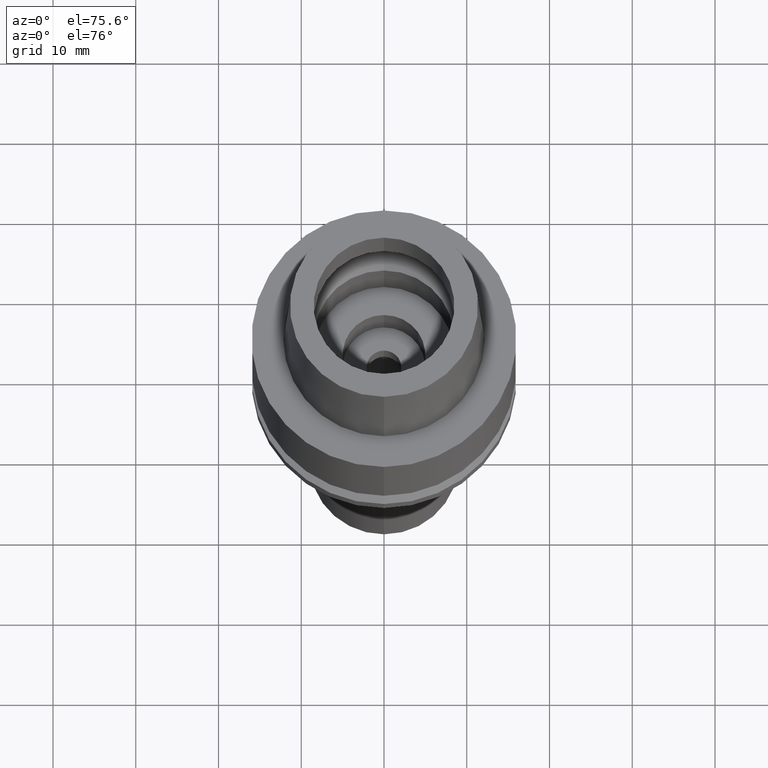
[diagram: clean part render]
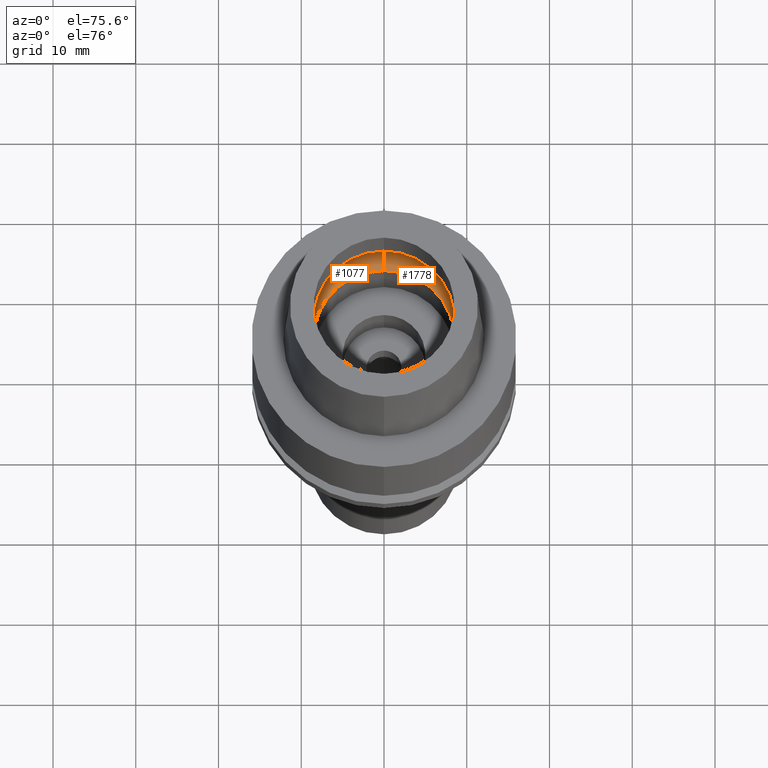
[diagram: same view with one multi-face feature highlighted, each face labeled with its STEP entity id]
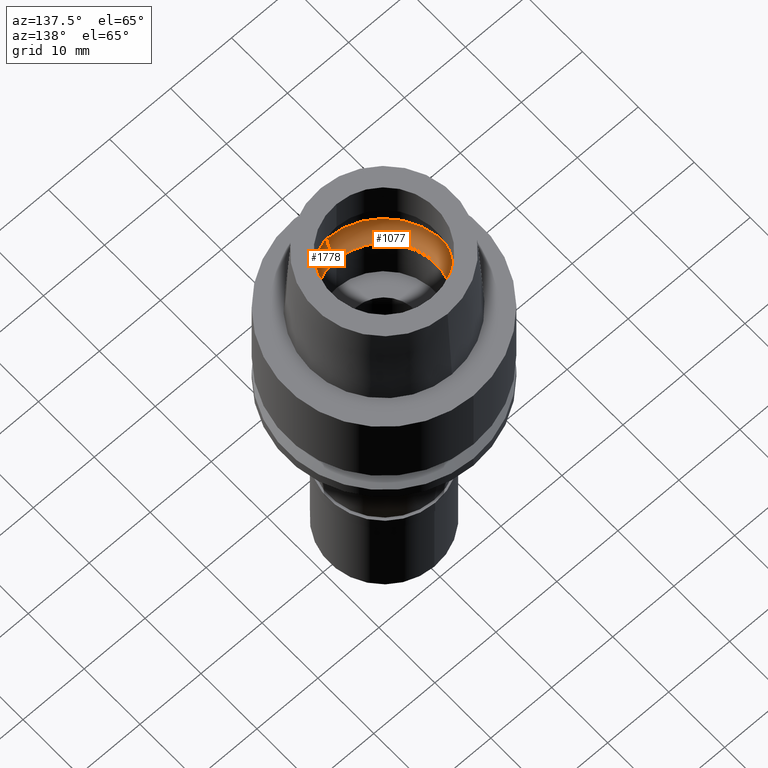
[diagram: same view with one multi-face feature highlighted, each face labeled with its STEP entity id]
A machine part, auxiliary view. The highlighted faces form ONE feature: a constant-radius fillet chain: 2 tangent blend faces with common blend radius 4 mm. The faces share edges in the B-rep.
A second angle (auxiliary view) of the same feature is appended — it is thin or edge-on in the first view.
Their STEP definitions:
[1] entity #1778 (Torus):
#56 = EDGE_CURVE ( 'NONE', #2251, #1456, #147, .T. ) ;
#59 = DIRECTION ( 'NONE',  ( 0.0000000000000000000, -1.000000000000000000, 0.0000000000000000000 ) ) ;
#135 = ORIENTED_EDGE ( 'NONE', *, *, #2108, .F. ) ;
#147 = CIRCLE ( 'NONE', #1941, 3.999999999999999112 ) ;
#206 = CARTESIAN_POINT ( 'NONE',  ( 0.0000000000000000000, -10.25000000000000000, 3.357000000000000206 ) ) ;
#210 = VERTEX_POINT ( 'NONE', #879 ) ;
#235 = DIRECTION ( 'NONE',  ( 0.0000000000000000000, 0.0000000000000000000, 1.000000000000000000 ) ) ;
#313 = CARTESIAN_POINT ( 'NONE',  ( 0.0000000000000000000, 0.0000000000000000000, 3.357000000000000206 ) ) ;
#322 = AXIS2_PLACEMENT_3D ( 'NONE', #1648, #1659, #2495 ) ;
#456 = VERTEX_POINT ( 'NONE', #1833 ) ;
#533 = DIRECTION ( 'NONE',  ( 0.0000000000000000000, 1.000000000000000000, 0.0000000000000000000 ) ) ;
#555 = CARTESIAN_POINT ( 'NONE',  ( 0.0000000000000000000, -8.500000000000000000, 0.04981086116926999874 ) ) ;
#646 = CARTESIAN_POINT ( 'NONE',  ( 0.0000000000000000000, 0.0000000000000000000, 0.04981086116926999874 ) ) ;
#729 = DIRECTION ( 'NONE',  ( 0.0000000000000000000, 0.5624999999999932276, -0.8267972847076892062 ) ) ;
#813 = ORIENTED_EDGE ( 'NONE', *, *, #56, .T. ) ;
#879 = CARTESIAN_POINT ( 'NONE',  ( 0.0000000000000000000, 8.500000000000000000, 0.04981086116926999874 ) ) ;
#1053 = CARTESIAN_POINT ( 'NONE',  ( 0.0000000000000000000, -6.250000000000000000, 3.357000000000000206 ) ) ;
#1093 = DIRECTION ( 'NONE',  ( 0.0000000000000000000, -0.5624999999999932276, -0.8267972847076892062 ) ) ;
#1098 = EDGE_LOOP ( 'NONE', ( #2222, #813, #135, #1759 ) ) ;
#1206 = AXIS2_PLACEMENT_3D ( 'NONE', #646, #235, #59 ) ;
#1221 = FACE_OUTER_BOUND ( 'NONE', #1098, .T. ) ;
#1242 = TOROIDAL_SURFACE ( 'NONE', #322, 6.250000000000000000, 4.000000000000000000 ) ;
#1315 = DIRECTION ( 'NONE',  ( 0.0000000000000000000, 0.0000000000000000000, -1.000000000000000000 ) ) ;
#1456 = VERTEX_POINT ( 'NONE', #206 ) ;
#1500 = CIRCLE ( 'NONE', #1681, 10.25000000000000000 ) ;
#1638 = CIRCLE ( 'NONE', #2336, 3.999999999999999112 ) ;
#1648 = CARTESIAN_POINT ( 'NONE',  ( 0.0000000000000000000, 0.0000000000000000000, 3.357000000000000206 ) ) ;
#1659 = DIRECTION ( 'NONE',  ( 0.0000000000000000000, 0.0000000000000000000, -1.000000000000000000 ) ) ;
#1677 = DIRECTION ( 'NONE',  ( -1.000000000000000000, 0.0000000000000000000, 0.0000000000000000000 ) ) ;
#1681 = AXIS2_PLACEMENT_3D ( 'NONE', #313, #1315, #533 ) ;
#1759 = ORIENTED_EDGE ( 'NONE', *, *, #2176, .F. ) ;
#1762 = DIRECTION ( 'NONE',  ( 1.000000000000000000, 0.0000000000000000000, 0.0000000000000000000 ) ) ;
#1778 = ADVANCED_FACE ( 'NONE', ( #1221 ), #1242, .F. ) ;
#1833 = CARTESIAN_POINT ( 'NONE',  ( 0.0000000000000000000, 10.25000000000000000, 3.357000000000000206 ) ) ;
#1885 = EDGE_CURVE ( 'NONE', #2251, #210, #2595, .T. ) ;
#1941 = AXIS2_PLACEMENT_3D ( 'NONE', #1053, #1677, #1093 ) ;
#2108 = EDGE_CURVE ( 'NONE', #456, #1456, #1500, .T. ) ;
#2176 = EDGE_CURVE ( 'NONE', #210, #456, #1638, .T. ) ;
#2222 = ORIENTED_EDGE ( 'NONE', *, *, #1885, .F. ) ;
#2251 = VERTEX_POINT ( 'NONE', #555 ) ;
#2336 = AXIS2_PLACEMENT_3D ( 'NONE', #2611, #1762, #729 ) ;
#2495 = DIRECTION ( 'NONE',  ( 0.0000000000000000000, -1.000000000000000000, 0.0000000000000000000 ) ) ;
#2595 = CIRCLE ( 'NONE', #1206, 8.500000000000000000 ) ;
#2611 = CARTESIAN_POINT ( 'NONE',  ( 0.0000000000000000000, 6.250000000000000000, 3.357000000000000206 ) ) ;
[2] entity #1077 (Torus):
#56 = EDGE_CURVE ( 'NONE', #2251, #1456, #147, .T. ) ;
#147 = CIRCLE ( 'NONE', #1941, 3.999999999999999112 ) ;
#177 = FACE_OUTER_BOUND ( 'NONE', #253, .T. ) ;
#206 = CARTESIAN_POINT ( 'NONE',  ( 0.0000000000000000000, -10.25000000000000000, 3.357000000000000206 ) ) ;
#210 = VERTEX_POINT ( 'NONE', #879 ) ;
#237 = CIRCLE ( 'NONE', #2157, 10.25000000000000000 ) ;
#253 = EDGE_LOOP ( 'NONE', ( #1443, #2052, #1844, #293 ) ) ;
#293 = ORIENTED_EDGE ( 'NONE', *, *, #2176, .T. ) ;
#320 = TOROIDAL_SURFACE ( 'NONE', #714, 6.250000000000000000, 4.000000000000000000 ) ;
#411 = CARTESIAN_POINT ( 'NONE',  ( 0.0000000000000000000, 0.0000000000000000000, 3.357000000000000206 ) ) ;
#456 = VERTEX_POINT ( 'NONE', #1833 ) ;
#555 = CARTESIAN_POINT ( 'NONE',  ( 0.0000000000000000000, -8.500000000000000000, 0.04981086116926999874 ) ) ;
#666 = EDGE_CURVE ( 'NONE', #210, #2251, #1943, .T. ) ;
#714 = AXIS2_PLACEMENT_3D ( 'NONE', #2043, #1863, #1014 ) ;
#729 = DIRECTION ( 'NONE',  ( 0.0000000000000000000, 0.5624999999999932276, -0.8267972847076892062 ) ) ;
#757 = AXIS2_PLACEMENT_3D ( 'NONE', #1572, #2216, #1141 ) ;
#879 = CARTESIAN_POINT ( 'NONE',  ( 0.0000000000000000000, 8.500000000000000000, 0.04981086116926999874 ) ) ;
#1014 = DIRECTION ( 'NONE',  ( 0.0000000000000000000, -1.000000000000000000, 0.0000000000000000000 ) ) ;
#1053 = CARTESIAN_POINT ( 'NONE',  ( 0.0000000000000000000, -6.250000000000000000, 3.357000000000000206 ) ) ;
#1077 = ADVANCED_FACE ( 'NONE', ( #177 ), #320, .F. ) ;
#1093 = DIRECTION ( 'NONE',  ( 0.0000000000000000000, -0.5624999999999932276, -0.8267972847076892062 ) ) ;
#1123 = EDGE_CURVE ( 'NONE', #1456, #456, #237, .T. ) ;
#1141 = DIRECTION ( 'NONE',  ( 0.0000000000000000000, 1.000000000000000000, 0.0000000000000000000 ) ) ;
#1443 = ORIENTED_EDGE ( 'NONE', *, *, #1123, .F. ) ;
#1456 = VERTEX_POINT ( 'NONE', #206 ) ;
#1572 = CARTESIAN_POINT ( 'NONE',  ( 0.0000000000000000000, 0.0000000000000000000, 0.04981086116926999874 ) ) ;
#1623 = DIRECTION ( 'NONE',  ( 0.0000000000000000000, -1.000000000000000000, 0.0000000000000000000 ) ) ;
#1638 = CIRCLE ( 'NONE', #2336, 3.999999999999999112 ) ;
#1677 = DIRECTION ( 'NONE',  ( -1.000000000000000000, 0.0000000000000000000, 0.0000000000000000000 ) ) ;
#1762 = DIRECTION ( 'NONE',  ( 1.000000000000000000, 0.0000000000000000000, 0.0000000000000000000 ) ) ;
#1833 = CARTESIAN_POINT ( 'NONE',  ( 0.0000000000000000000, 10.25000000000000000, 3.357000000000000206 ) ) ;
#1844 = ORIENTED_EDGE ( 'NONE', *, *, #666, .F. ) ;
#1863 = DIRECTION ( 'NONE',  ( 0.0000000000000000000, 0.0000000000000000000, -1.000000000000000000 ) ) ;
#1941 = AXIS2_PLACEMENT_3D ( 'NONE', #1053, #1677, #1093 ) ;
#1943 = CIRCLE ( 'NONE', #757, 8.500000000000000000 ) ;
#2043 = CARTESIAN_POINT ( 'NONE',  ( 0.0000000000000000000, 0.0000000000000000000, 3.357000000000000206 ) ) ;
#2052 = ORIENTED_EDGE ( 'NONE', *, *, #56, .F. ) ;
#2157 = AXIS2_PLACEMENT_3D ( 'NONE', #411, #2491, #1623 ) ;
#2176 = EDGE_CURVE ( 'NONE', #210, #456, #1638, .T. ) ;
#2216 = DIRECTION ( 'NONE',  ( 0.0000000000000000000, 0.0000000000000000000, 1.000000000000000000 ) ) ;
#2251 = VERTEX_POINT ( 'NONE', #555 ) ;
#2336 = AXIS2_PLACEMENT_3D ( 'NONE', #2611, #1762, #729 ) ;
#2491 = DIRECTION ( 'NONE',  ( 0.0000000000000000000, 0.0000000000000000000, -1.000000000000000000 ) ) ;
#2611 = CARTESIAN_POINT ( 'NONE',  ( 0.0000000000000000000, 6.250000000000000000, 3.357000000000000206 ) ) ;